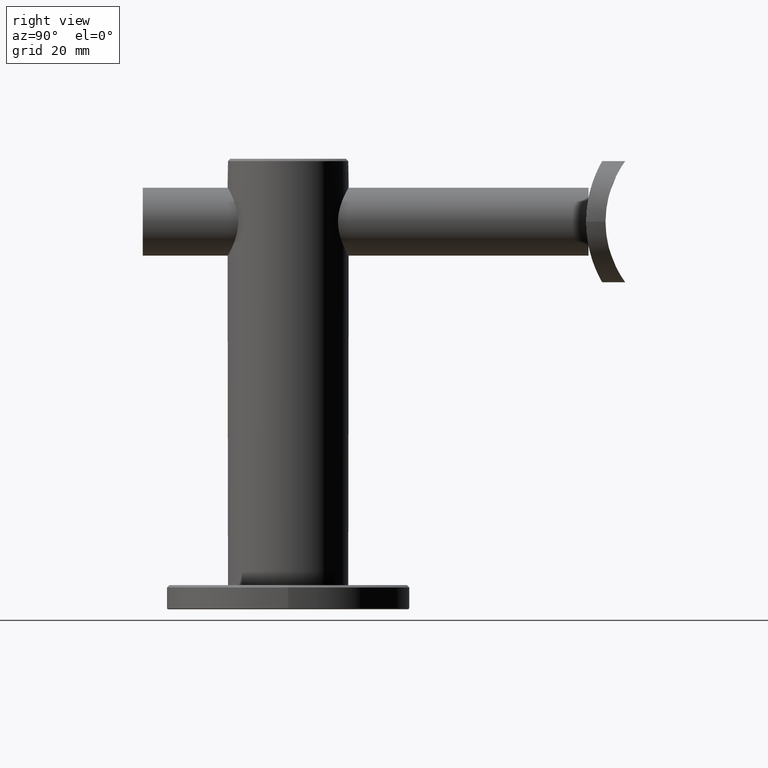
[diagram: clean part render]
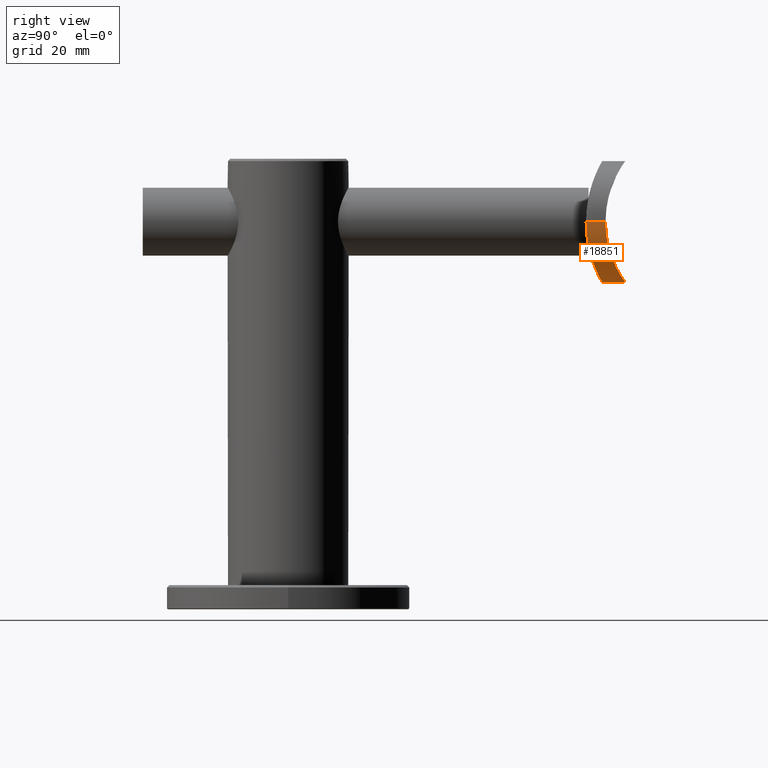
[diagram: same view with one face highlighted and labeled with its STEP entity id]
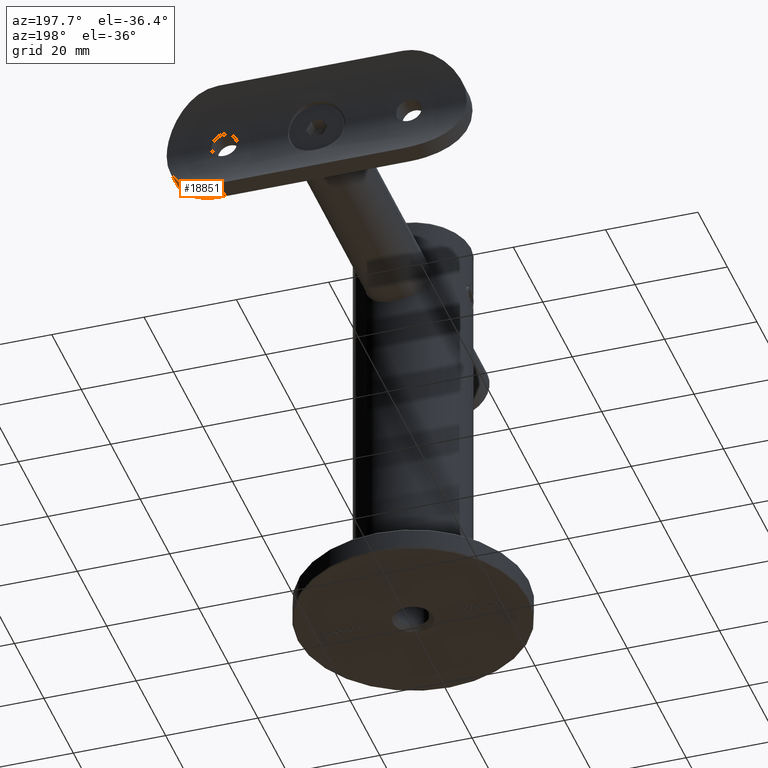
[diagram: same view with one face highlighted and labeled with its STEP entity id]
A machine part, right view. The second image highlights one B-rep face of the part: STEP entity #18851.
A second angle (auxiliary view) of the same face is appended — the face is thin or edge-on in the first view.
In plain terms, the highlighted cylindrical surface (partial cylindrical patch) has radius 12.5 mm, axis along (-0, -1, 0).
Its self-contained STEP definition (entity closure, byte-faithful):
#15 = CARTESIAN_POINT ( 'NONE',  ( -6.332596659029539900, 4.955350400242433100, -30.80774938862476000 ) ) ;
#16 = DIRECTION ( 'NONE',  ( -3.645542167638208600E-016, 1.000000000000000000, -0.0000000000000000000 ) ) ;
#148 = CARTESIAN_POINT ( 'NONE',  ( -12.50000000000000200, 8.077208171562675800, -20.00000000000000400 ) ) ;
#244 = CYLINDRICAL_SURFACE ( 'NONE', #18855, 12.50000000000000000 ) ;
#565 = CARTESIAN_POINT ( 'NONE',  ( -8.562141571826803200, 1.497233673915071600, -29.11593343704042900 ) ) ;
#1934 = CARTESIAN_POINT ( 'NONE',  ( -12.50000000000000000, 3.318729470161012600, -20.00000000000000400 ) ) ;
#1974 = CARTESIAN_POINT ( 'NONE',  ( 1.209856822645558900E-015, 0.0000000000000000000, -32.50000000000000000 ) ) ;
#2382 = EDGE_CURVE ( 'NONE', #4321, #14128, #16520, .T. ) ;
#2861 = EDGE_CURVE ( 'NONE', #12480, #7104, #7515, .T. ) ;
#3024 = CARTESIAN_POINT ( 'NONE',  ( -0.8482395851185943200, 4.000000000000000000, -32.50000000000000000 ) ) ;
#3266 = EDGE_CURVE ( 'NONE', #14128, #12480, #12227, .T. ) ;
#4321 = VERTEX_POINT ( 'NONE', #18074 ) ;
#4337 = CARTESIAN_POINT ( 'NONE',  ( -11.20516604691105700, 7.199313738460714900, -25.59920734051991400 ) ) ;
#4872 = CARTESIAN_POINT ( 'NONE',  ( -3.291592242805510000, 0.2126942720887817800, -32.06594161125494900 ) ) ;
#4935 = CARTESIAN_POINT ( 'NONE',  ( -7.315607594578457600, 1.082687997029816700, -30.14380031678957300 ) ) ;
#5755 = CARTESIAN_POINT ( 'NONE',  ( -12.06337854131605000, 7.766211032369483300, -23.30110932669052200 ) ) ;
#5887 = CARTESIAN_POINT ( 'NONE',  ( -2.899666870893741900, 4.195241269652992600, -32.16611798350431400 ) ) ;
#6173 = CARTESIAN_POINT ( 'NONE',  ( -12.41604513394916200, 3.270190002513735800, -21.66440971848880200 ) ) ;
#6374 = CARTESIAN_POINT ( 'NONE',  ( -7.642973678624866100, 1.184744735341880300, -29.89937630247454000 ) ) ;
#6561 = CARTESIAN_POINT ( 'NONE',  ( -0.8408319059978900400, 1.018321832143503400E-016, -32.50000000000000700 ) ) ;
#7099 = ORIENTED_EDGE ( 'NONE', *, *, #2382, .F. ) ;
#7104 = VERTEX_POINT ( 'NONE', #12230 ) ;
#7238 = CARTESIAN_POINT ( 'NONE',  ( -12.16642152362135800, 7.838305269537123400, -22.89829279892429500 ) ) ;
#7441 = CARTESIAN_POINT ( 'NONE',  ( -10.82440004562427500, 6.964469962909638500, -26.30269686619443400 ) ) ;
#7496 = CARTESIAN_POINT ( 'NONE',  ( -5.620540116801277200, 4.743934902012524500, -31.19511631914029000 ) ) ;
#7515 = B_SPLINE_CURVE_WITH_KNOTS ( 'NONE', 3,
 ( #17697, #3024, #8788, #5887, #14551, #16109, #17562, #7496, #15, #10273, #8982, #13093, #10333, #8851, #11588, #15978, #16170, #7441, #4337, #17629, #14495, #5755, #7238, #17438, #11648, #148 ),
 .UNSPECIFIED., .F., .F.,
 ( 4, 2, 2, 2, 2, 2, 2, 2, 2, 2, 2, 2, 4 ),
 ( 0.0000000000000000000, 0.002504973849704562500, 0.003757460774556845100, 0.005009947699409129400, 0.007514921549113707600, 0.008767408473965994000, 0.01001989539881828300, 0.01127238232367057000, 0.01252486924852286000, 0.01502984309822744800, 0.01628233002307974400, 0.01753481694793203700, 0.02003979079763662500 ),
 .UNSPECIFIED. ) ;
#7538 = ORIENTED_EDGE ( 'NONE', *, *, #3266, .F. ) ;
#7917 = CARTESIAN_POINT ( 'NONE',  ( -6.305223603466179000, 0.7914857843385435500, -30.82374023567219000 ) ) ;
#8040 = CARTESIAN_POINT ( 'NONE',  ( -5.594010815491759400, 0.6168360506386475500, -31.20802645236642200 ) ) ;
#8069 = FACE_OUTER_BOUND ( 'NONE', #14306, .T. ) ;
#8261 = DIRECTION ( 'NONE',  ( 3.645542167638208600E-016, -1.000000000000000000, 0.0000000000000000000 ) ) ;
#8788 = CARTESIAN_POINT ( 'NONE',  ( -1.678717414094958600, 4.050679987938036000, -32.41458363564552100 ) ) ;
#8789 = CARTESIAN_POINT ( 'NONE',  ( -7.976909439802725400E-015, 25.19999999999999900, -32.50000000000000000 ) ) ;
#8851 = CARTESIAN_POINT ( 'NONE',  ( -9.137400882198221600, 6.067735843547090700, -28.53911077795326900 ) ) ;
#8982 = CARTESIAN_POINT ( 'NONE',  ( -7.664485972305217700, 5.431176652695317100, -29.88260659836540600 ) ) ;
#9137 = CARTESIAN_POINT ( 'NONE',  ( -12.50000000000000200, 3.318729470161017000, -20.00000000000000400 ) ) ;
#9262 = CARTESIAN_POINT ( 'NONE',  ( -11.21365936985682400, 2.629676505859716200, -25.58293283478850500 ) ) ;
#9524 = CARTESIAN_POINT ( 'NONE',  ( -9.397641427769128700, 1.816225346274616300, -28.25204418689426700 ) ) ;
#9570 = ORIENTED_EDGE ( 'NONE', *, *, #12759, .F. ) ;
#9829 = VECTOR ( 'NONE', #15064, 1000.000000000000000 ) ;
#10273 = CARTESIAN_POINT ( 'NONE',  ( -7.341278511869141700, 5.308480845423154000, -30.12523760879151900 ) ) ;
#10333 = CARTESIAN_POINT ( 'NONE',  ( -8.575483413111356900, 5.809365382594061900, -29.10327369640210500 ) ) ;
#10797 = CARTESIAN_POINT ( 'NONE',  ( -4.468211620779531900, 0.3963447934949447200, -31.68121519372564500 ) ) ;
#11486 = CARTESIAN_POINT ( 'NONE',  ( 1.209856822645558900E-015, 0.0000000000000000000, -32.50000000000000000 ) ) ;
#11515 = VECTOR ( 'NONE', #16, 1000.000000000000000 ) ;
#11588 = CARTESIAN_POINT ( 'NONE',  ( -9.404962878365175500, 6.198203738630027700, -28.24361247481621400 ) ) ;
#11648 = CARTESIAN_POINT ( 'NONE',  ( -12.49999999999999800, 8.077208171562672200, -20.84935178333091300 ) ) ;
#12058 = CARTESIAN_POINT ( 'NONE',  ( -12.50000000000000200, 3.318729470161017500, -20.84092147420122400 ) ) ;
#12227 = LINE ( 'NONE', #8789, #11515 ) ;
#12230 = CARTESIAN_POINT ( 'NONE',  ( -12.50000000000000200, 8.077208171562675800, -20.00000000000000400 ) ) ;
#12313 = CARTESIAN_POINT ( 'NONE',  ( -9.128318860952351300, 1.709465851586686500, -28.54893592778294900 ) ) ;
#12480 = VERTEX_POINT ( 'NONE', #14049 ) ;
#12759 = EDGE_CURVE ( 'NONE', #7104, #4321, #18205, .T. ) ;
#13093 = CARTESIAN_POINT ( 'NONE',  ( -8.281128637814754600, 5.681454197595392900, -29.37193506601935400 ) ) ;
#13630 = CARTESIAN_POINT ( 'NONE',  ( -11.68647699581961100, 2.872938612537726300, -24.45450101598523700 ) ) ;
#13689 = CARTESIAN_POINT ( 'NONE',  ( -8.265288067340183200, 1.391754679466064500, -29.38603808824741700 ) ) ;
#14049 = CARTESIAN_POINT ( 'NONE',  ( -2.483600444097239800E-016, 4.000000000000000000, -32.50000000000000000 ) ) ;
#14128 = VERTEX_POINT ( 'NONE', #11486 ) ;
#14285 = DIRECTION ( 'NONE',  ( 1.000000000000000000, 3.816391647148975600E-016, 0.0000000000000000000 ) ) ;
#14306 = EDGE_LOOP ( 'NONE', ( #15777, #7538, #7099, #9570 ) ) ;
#14495 = CARTESIAN_POINT ( 'NONE',  ( -11.81770469574649400, 7.598751313526325800, -24.09442063569178300 ) ) ;
#14551 = CARTESIAN_POINT ( 'NONE',  ( -3.302492734939012700, 4.254893961373073600, -32.06307353030366200 ) ) ;
#15064 = DIRECTION ( 'NONE',  ( 3.645542167638208600E-016, -1.000000000000000000, 0.0000000000000000000 ) ) ;
#15163 = CARTESIAN_POINT ( 'NONE',  ( -4.083048678825491600, 0.3297619529015444800, -31.82160056614383900 ) ) ;
#15232 = CARTESIAN_POINT ( 'NONE',  ( -10.83002449294435900, 2.440458914311940000, -26.29431497601599700 ) ) ;
#15777 = ORIENTED_EDGE ( 'NONE', *, *, #2861, .F. ) ;
#15978 = CARTESIAN_POINT ( 'NONE',  ( -9.913493343117123000, 6.458488917965733700, -27.62450805720243400 ) ) ;
#16109 = CARTESIAN_POINT ( 'NONE',  ( -4.099810591710030900, 4.396262875489091100, -31.81591106829855100 ) ) ;
#16170 = CARTESIAN_POINT ( 'NONE',  ( -10.15465027284116900, 6.588481366190972500, -27.30023861733290900 ) ) ;
#16379 = CARTESIAN_POINT ( 'NONE',  ( -12.17172894015757700, 3.134241449003881500, -22.87552147047214000 ) ) ;
#16520 = B_SPLINE_CURVE_WITH_KNOTS ( 'NONE', 3,
 ( #9137, #12058, #6173, #16379, #16756, #16574, #13630, #9262, #15232, #18160, #16634, #9524, #12313, #565, #13689, #6374, #4935, #7917, #8040, #10797, #15163, #4872, #16694, #17969, #6561, #1974 ),
 .UNSPECIFIED., .F., .F.,
 ( 4, 2, 2, 2, 2, 2, 2, 2, 2, 2, 2, 2, 4 ),
 ( 0.0000000000000000000, 0.002482949619020703500, 0.003724424428531049700, 0.004965899238041395800, 0.007448848857062090700, 0.008690323666572441100, 0.009931798476082793300, 0.01117327328559314600, 0.01241474809510349400, 0.01489769771412419200, 0.01613917252363453900, 0.01738064733314488600, 0.01986359695216558300 ),
 .UNSPECIFIED. ) ;
#16574 = CARTESIAN_POINT ( 'NONE',  ( -11.82730682096132600, 2.947497412072437300, -24.06646263368969900 ) ) ;
#16634 = CARTESIAN_POINT ( 'NONE',  ( -9.908890582928830100, 2.028239840774360000, -27.63058222437334900 ) ) ;
#16694 = CARTESIAN_POINT ( 'NONE',  ( -2.886391478844328800, 0.1625181075792117600, -32.16925023365995200 ) ) ;
#16756 = CARTESIAN_POINT ( 'NONE',  ( -12.07039748615804300, 3.078414103210621400, -23.27518083691609600 ) ) ;
#17438 = CARTESIAN_POINT ( 'NONE',  ( -12.41439949553293000, 8.013851170719203100, -21.67938694774175100 ) ) ;
#17562 = CARTESIAN_POINT ( 'NONE',  ( -4.488656383330084800, 4.477012003651391400, -31.67346302616767100 ) ) ;
#17629 = CARTESIAN_POINT ( 'NONE',  ( -11.67708478872317600, 7.504780197938364600, -24.47882887395968500 ) ) ;
#17697 = CARTESIAN_POINT ( 'NONE',  ( -2.483600444097239800E-016, 4.000000000000000000, -32.50000000000000000 ) ) ;
#17969 = CARTESIAN_POINT ( 'NONE',  ( -1.667268011024895000, 0.04195479554921784100, -32.41603179174911300 ) ) ;
#18074 = CARTESIAN_POINT ( 'NONE',  ( -12.50000000000000200, 3.318729470161017000, -20.00000000000000400 ) ) ;
#18160 = CARTESIAN_POINT ( 'NONE',  ( -10.15187181039420000, 2.133985303426428000, -27.30437927746719100 ) ) ;
#18205 = LINE ( 'NONE', #1934, #9829 ) ;
#18376 = CARTESIAN_POINT ( 'NONE',  ( 0.0000000000000000000, 3.318729470161017000, -20.00000000000000400 ) ) ;
#18851 = ADVANCED_FACE ( 'NONE', ( #8069 ), #244, .T. ) ;
#18855 = AXIS2_PLACEMENT_3D ( 'NONE', #18376, #8261, #14285 ) ;